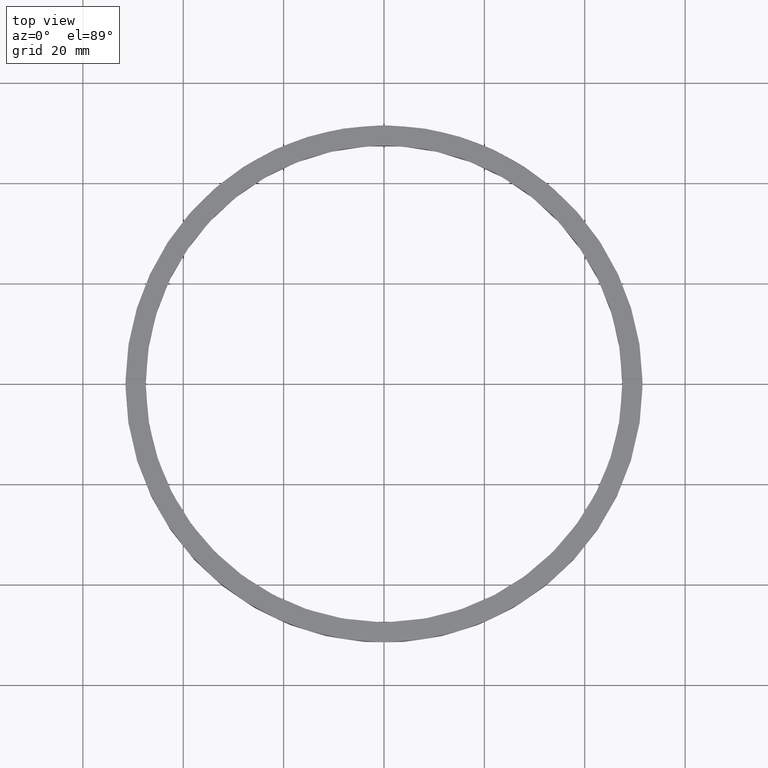
[diagram: clean part render]
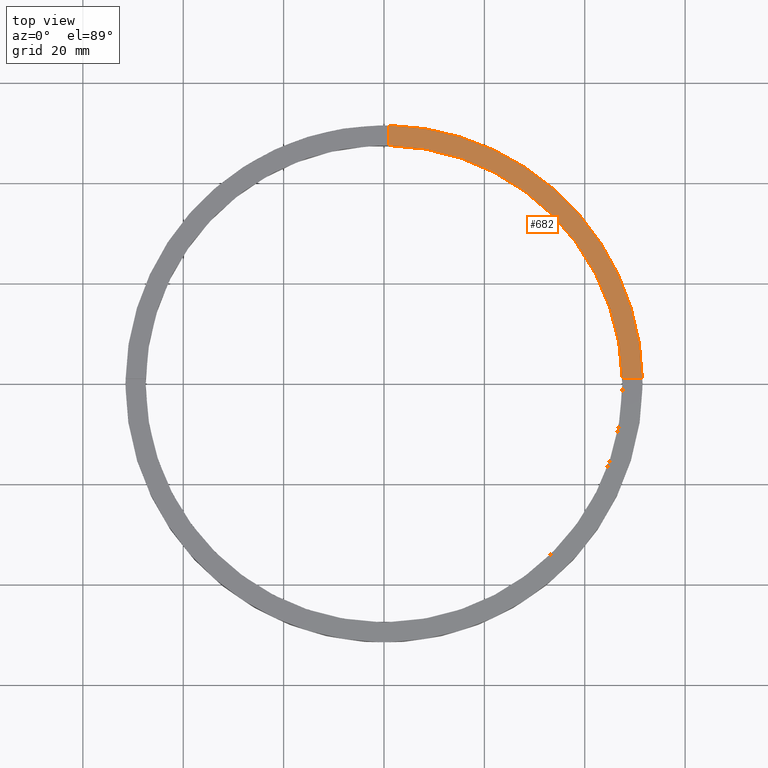
[diagram: same view with one face highlighted and labeled with its STEP entity id]
A machine part, top view. The second image highlights one B-rep face of the part: STEP entity #682.
In plain terms, the highlighted planar face has unit normal (0, 0, 1).
Its self-contained STEP definition (entity closure, byte-faithful):
#21 = LINE ( 'NONE', #189, #293 ) ;
#38 = FACE_OUTER_BOUND ( 'NONE', #457, .T. ) ;
#67 = CIRCLE ( 'NONE', #631, 47.50000000000000711 ) ;
#146 = ORIENTED_EDGE ( 'NONE', *, *, #265, .F. ) ;
#183 = DIRECTION ( 'NONE',  ( 0.000000000000000000, 0.000000000000000000, 1.000000000000000000 ) ) ;
#189 = CARTESIAN_POINT ( 'NONE',  ( 41.49999999999998579, 0.9999999999998445688, 5.000000000000000000 ) ) ;
#199 = AXIS2_PLACEMENT_3D ( 'NONE', #247, #435, #746 ) ;
#203 = ORIENTED_EDGE ( 'NONE', *, *, #292, .T. ) ;
#217 = VERTEX_POINT ( 'NONE', #298 ) ;
#230 = DIRECTION ( 'NONE',  ( 0.000000000000000000, 0.000000000000000000, 1.000000000000000000 ) ) ;
#238 = DIRECTION ( 'NONE',  ( 0.000000000000000000, 1.000000000000000000, 0.000000000000000000 ) ) ;
#247 = CARTESIAN_POINT ( 'NONE',  ( 0.000000000000000000, 0.000000000000000000, 5.000000000000000000 ) ) ;
#263 = AXIS2_PLACEMENT_3D ( 'NONE', #488, #230, #483 ) ;
#265 = EDGE_CURVE ( 'NONE', #217, #427, #21, .T. ) ;
#269 = CARTESIAN_POINT ( 'NONE',  ( 0.9999999999999731326, 47.48947251760120736, 5.000000000000000000 ) ) ;
#292 = EDGE_CURVE ( 'NONE', #217, #433, #562, .T. ) ;
#293 = VECTOR ( 'NONE', #501, 1000.000000000000000 ) ;
#298 = CARTESIAN_POINT ( 'NONE',  ( 51.49029034682169481, 0.9999999999998452349, 5.000000000000000000 ) ) ;
#317 = VECTOR ( 'NONE', #238, 1000.000000000000000 ) ;
#318 = LINE ( 'NONE', #639, #317 ) ;
#427 = VERTEX_POINT ( 'NONE', #765 ) ;
#433 = VERTEX_POINT ( 'NONE', #607 ) ;
#435 = DIRECTION ( 'NONE',  ( 0.000000000000000000, 0.000000000000000000, 1.000000000000000000 ) ) ;
#436 = DIRECTION ( 'NONE',  ( 1.000000000000000000, 0.000000000000000000, 0.000000000000000000 ) ) ;
#457 = EDGE_LOOP ( 'NONE', ( #704, #702, #146, #203 ) ) ;
#483 = DIRECTION ( 'NONE',  ( 1.000000000000000000, 0.000000000000000000, -0.000000000000000000 ) ) ;
#488 = CARTESIAN_POINT ( 'NONE',  ( 0.000000000000000000, 0.000000000000000000, 5.000000000000000000 ) ) ;
#501 = DIRECTION ( 'NONE',  ( -1.000000000000000000, -6.505213034913025371E-17, -0.000000000000000000 ) ) ;
#502 = CARTESIAN_POINT ( 'NONE',  ( 0.000000000000000000, 0.000000000000000000, 5.000000000000000000 ) ) ;
#562 = CIRCLE ( 'NONE', #199, 51.50000000000000000 ) ;
#596 = PLANE ( 'NONE',  #263 ) ;
#607 = CARTESIAN_POINT ( 'NONE',  ( 0.9999999999999731326, 51.49029034682169481, 5.000000000000000000 ) ) ;
#611 = EDGE_CURVE ( 'NONE', #427, #638, #67, .T. ) ;
#631 = AXIS2_PLACEMENT_3D ( 'NONE', #502, #183, #436 ) ;
#638 = VERTEX_POINT ( 'NONE', #269 ) ;
#639 = CARTESIAN_POINT ( 'NONE',  ( 0.9999999999999731326, 41.49999999999999289, 5.000000000000000000 ) ) ;
#682 = ADVANCED_FACE ( 'NONE', ( #38 ), #596, .T. ) ;
#691 = EDGE_CURVE ( 'NONE', #638, #433, #318, .T. ) ;
#702 = ORIENTED_EDGE ( 'NONE', *, *, #611, .F. ) ;
#704 = ORIENTED_EDGE ( 'NONE', *, *, #691, .F. ) ;
#746 = DIRECTION ( 'NONE',  ( 1.000000000000000000, 0.000000000000000000, 0.000000000000000000 ) ) ;
#765 = CARTESIAN_POINT ( 'NONE',  ( 47.48947251760121446, 0.9999999999998450129, 5.000000000000000000 ) ) ;